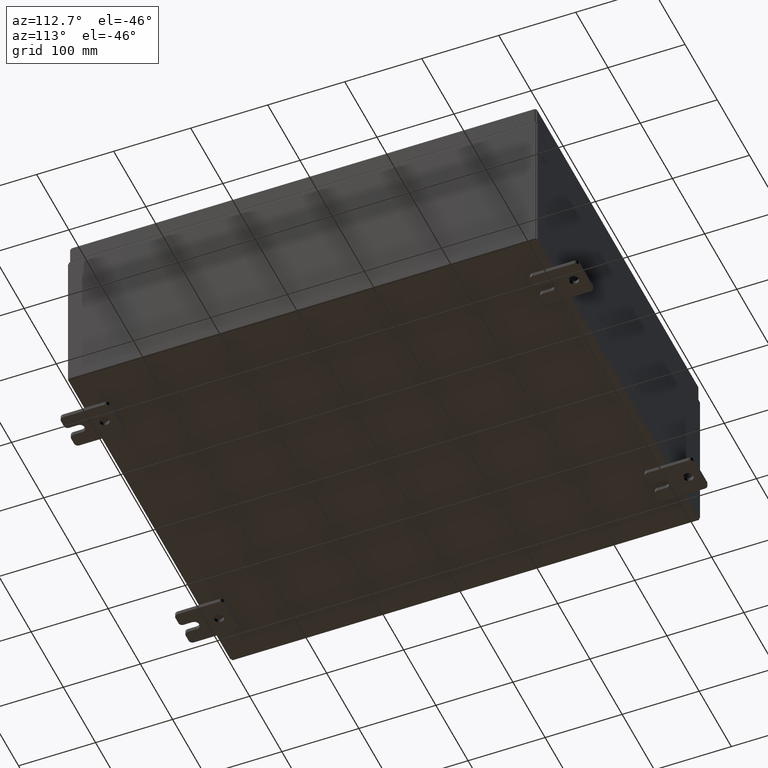
[diagram: clean part render]
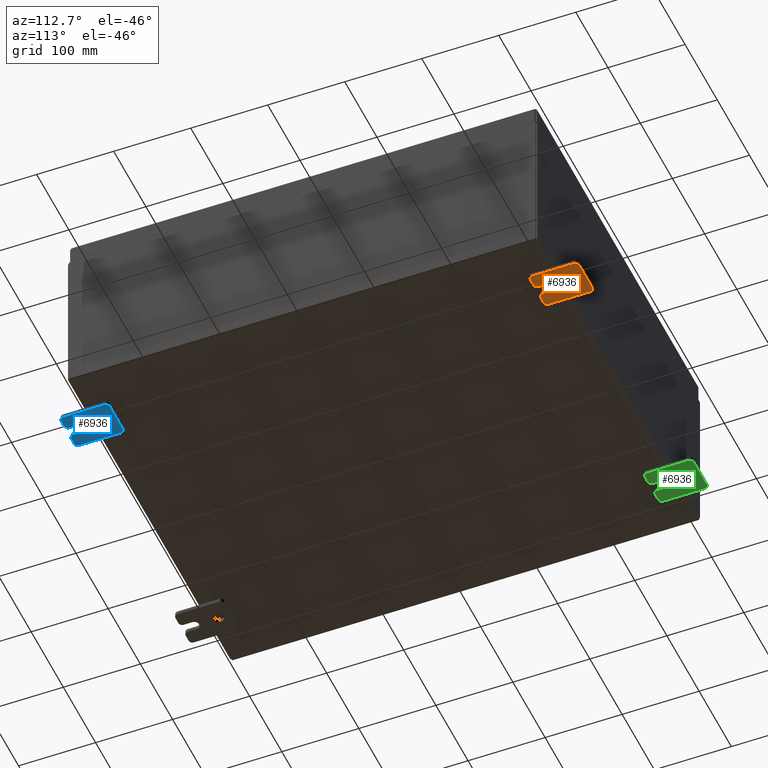
[diagram: same view with three faces highlighted in distinct colors, each labeled with its STEP entity id]
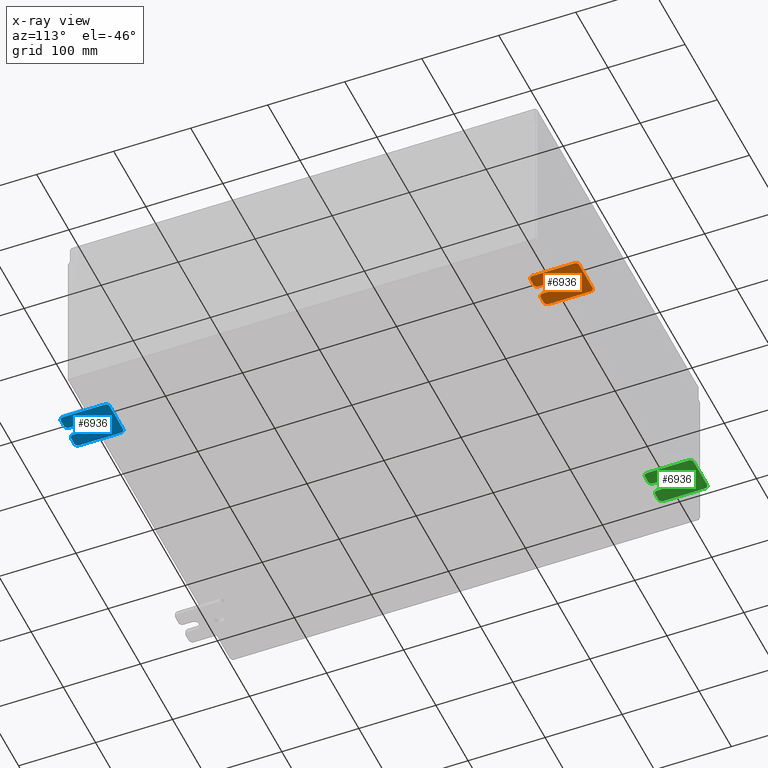
[diagram: x-ray of the same camera — body ghosted, the three highlighted faces saturated]
A machine part, auxiliary view with three faces highlighted in distinct colors.
The next image is the same camera in x-ray (body ghosted, the three faces saturated) — at least one of them is partly hidden behind the body in this view.
Their STEP definitions:

[orange] entity #6936 — the highlighted planar face has unit normal (0, 0, 1).
#694 = DIRECTION ( 'NONE',  ( -6.556435184794182400E-016, -1.000000000000000000, -1.639108796198545600E-016 ) ) ;
#1209 = VERTEX_POINT ( 'NONE', #24460 ) ;
#1649 = CARTESIAN_POINT ( 'NONE',  ( -0.1879999999999997800, -1.060000000000002100, 0.4400000000000016700 ) ) ;
#2498 = ORIENTED_EDGE ( 'NONE', *, *, #56751, .T. ) ;
#2922 = DIRECTION ( 'NONE',  ( -1.000000000000000000, -0.0000000000000000000, 0.0000000000000000000 ) ) ;
#3005 = DIRECTION ( 'NONE',  ( -1.000000000000000000, -0.0000000000000000000, 0.0000000000000000000 ) ) ;
#3062 = ORIENTED_EDGE ( 'NONE', *, *, #53513, .T. ) ;
#3301 = CARTESIAN_POINT ( 'NONE',  ( -0.1880000000000010000, 0.6249999999999992200, -7.703811342100550500E-020 ) ) ;
#3722 = AXIS2_PLACEMENT_3D ( 'NONE', #32342, #3005, #37277 ) ;
#4571 = CARTESIAN_POINT ( 'NONE',  ( -0.1879999999999997800, -1.250000000000002200, 0.9999999999999992200 ) ) ;
#4617 = ORIENTED_EDGE ( 'NONE', *, *, #44544, .F. ) ;
#4719 = CARTESIAN_POINT ( 'NONE',  ( -0.1880000000000004700, -1.060000000000002100, 0.2500000000000005000 ) ) ;
#4856 = EDGE_LOOP ( 'NONE', ( #15628, #2498 ) ) ;
#6189 = LINE ( 'NONE', #59436, #16153 ) ;
#6583 = DIRECTION ( 'NONE',  ( 0.0000000000000000000, 0.0000000000000000000, -1.000000000000000000 ) ) ;
#6643 = CARTESIAN_POINT ( 'NONE',  ( -0.1880000000000010000, 0.6249999999999992200, 0.2499999999999999200 ) ) ;
#6936 = ADVANCED_FACE ( 'NONE', ( #17700, #53801 ), #31899, .F. ) ;
#7525 = DIRECTION ( 'NONE',  ( -0.0000000000000000000, 0.0000000000000000000, -1.000000000000000000 ) ) ;
#7886 = EDGE_CURVE ( 'NONE', #45099, #39949, #6189, .T. ) ;
#8217 = DIRECTION ( 'NONE',  ( 0.0000000000000000000, 0.0000000000000000000, -1.000000000000000000 ) ) ;
#8533 = DIRECTION ( 'NONE',  ( -1.000000000000000000, -0.0000000000000000000, 0.0000000000000000000 ) ) ;
#10111 = AXIS2_PLACEMENT_3D ( 'NONE', #52267, #22822, #57200 ) ;
#10295 = LINE ( 'NONE', #27774, #49432 ) ;
#11179 = CARTESIAN_POINT ( 'NONE',  ( -0.1880000000000001900, -0.6249999999999992200, 0.2500000000000005000 ) ) ;
#11292 = DIRECTION ( 'NONE',  ( 1.000000000000000000, -0.0000000000000000000, -5.163192708025532000E-017 ) ) ;
#12228 = LINE ( 'NONE', #51895, #62834 ) ;
#12506 = EDGE_CURVE ( 'NONE', #63444, #13384, #56869, .T. ) ;
#13275 = LINE ( 'NONE', #21489, #40912 ) ;
#13384 = VERTEX_POINT ( 'NONE', #11179 ) ;
#13532 = ORIENTED_EDGE ( 'NONE', *, *, #36295, .T. ) ;
#13583 = ORIENTED_EDGE ( 'NONE', *, *, #39433, .T. ) ;
#15229 = AXIS2_PLACEMENT_3D ( 'NONE', #40650, #11292, #45618 ) ;
#15518 = CARTESIAN_POINT ( 'NONE',  ( -0.1880000000000001900, -0.6249999999999992200, -0.2499999999999993900 ) ) ;
#15628 = ORIENTED_EDGE ( 'NONE', *, *, #29330, .T. ) ;
#16153 = VECTOR ( 'NONE', #30050, 39.37007874015748100 ) ;
#17090 = AXIS2_PLACEMENT_3D ( 'NONE', #50219, #20778, #55138 ) ;
#17113 = ORIENTED_EDGE ( 'NONE', *, *, #30829, .T. ) ;
#17405 = VERTEX_POINT ( 'NONE', #24512 ) ;
#17700 = FACE_BOUND ( 'NONE', #4856, .T. ) ;
#18868 = AXIS2_PLACEMENT_3D ( 'NONE', #3301, #37577, #8217 ) ;
#19006 = CARTESIAN_POINT ( 'NONE',  ( -0.1879999999999997800, -1.060000000000004100, -0.8100000000000050500 ) ) ;
#19235 = VECTOR ( 'NONE', #52601, 39.37007874015748100 ) ;
#20037 = AXIS2_PLACEMENT_3D ( 'NONE', #32263, #2922, #37207 ) ;
#20778 = DIRECTION ( 'NONE',  ( -1.000000000000000000, -0.0000000000000000000, 0.0000000000000000000 ) ) ;
#21489 = CARTESIAN_POINT ( 'NONE',  ( -0.1879999999999997800, -1.250000000000005600, -1.000000000000006200 ) ) ;
#22336 = ORIENTED_EDGE ( 'NONE', *, *, #44743, .F. ) ;
#22822 = DIRECTION ( 'NONE',  ( -1.000000000000000000, 6.523827964459549700E-016, 5.163192708025532000E-017 ) ) ;
#23178 = CARTESIAN_POINT ( 'NONE',  ( -0.1880000000000005800, -1.250000000000003800, 0.2500000000000005000 ) ) ;
#23933 = DIRECTION ( 'NONE',  ( 0.0000000000000000000, 0.0000000000000000000, -1.000000000000000000 ) ) ;
#24460 = CARTESIAN_POINT ( 'NONE',  ( -0.1879999999999997800, 1.059999999999996500, 0.9999999999999953400 ) ) ;
#24512 = CARTESIAN_POINT ( 'NONE',  ( -0.1879999999999997800, -1.060000000000004500, -1.000000000000006400 ) ) ;
#25323 = EDGE_CURVE ( 'NONE', #1209, #46798, #10295, .T. ) ;
#25399 = VERTEX_POINT ( 'NONE', #42787 ) ;
#25705 = CARTESIAN_POINT ( 'NONE',  ( -0.1879999999999997800, -1.250000000000002400, 0.8099999999999980500 ) ) ;
#26244 = EDGE_CURVE ( 'NONE', #17405, #44542, #13275, .T. ) ;
#26509 = CIRCLE ( 'NONE', #10111, 0.2499999999999999200 ) ;
#27774 = CARTESIAN_POINT ( 'NONE',  ( -0.1879999999999997800, 1.249999999999997600, 0.9999999999999951200 ) ) ;
#27835 = VERTEX_POINT ( 'NONE', #60165 ) ;
#27867 = EDGE_CURVE ( 'NONE', #63444, #40456, #46954, .T. ) ;
#29130 = LINE ( 'NONE', #15518, #40661 ) ;
#29151 = EDGE_LOOP ( 'NONE', ( #4617, #3062, #41407, #13583, #55142, #13532, #63535, #61907, #36815, #17113, #22336, #40224, #54954, #33377 ) ) ;
#29177 = CARTESIAN_POINT ( 'NONE',  ( -0.1879999999999997800, -1.060000000000001200, 0.9999999999999988900 ) ) ;
#29330 = EDGE_CURVE ( 'NONE', #27835, #45010, #56084, .T. ) ;
#30050 = DIRECTION ( 'NONE',  ( 0.0000000000000000000, -1.639108796198553600E-015, -1.000000000000000000 ) ) ;
#30466 = CARTESIAN_POINT ( 'NONE',  ( -0.1879999999999997800, -1.250000000000005300, -0.8100000000000047200 ) ) ;
#30829 = EDGE_CURVE ( 'NONE', #45099, #38123, #59814, .T. ) ;
#31230 = CIRCLE ( 'NONE', #54282, 0.1900000000000011100 ) ;
#31899 = PLANE ( 'NONE',  #46751 ) ;
#32217 = VECTOR ( 'NONE', #58599, 39.37007874015748100 ) ;
#32263 = CARTESIAN_POINT ( 'NONE',  ( -0.1879999999999997800, -1.060000000000001600, 0.8099999999999978300 ) ) ;
#32342 = CARTESIAN_POINT ( 'NONE',  ( -0.1879999999999997800, -1.060000000000003400, -0.4400000000000005000 ) ) ;
#32700 = DIRECTION ( 'NONE',  ( 0.0000000000000000000, -1.000000000000000000, 1.639108796198558100E-015 ) ) ;
#33377 = ORIENTED_EDGE ( 'NONE', *, *, #27867, .T. ) ;
#33617 = CARTESIAN_POINT ( 'NONE',  ( -0.1879999999999997800, -1.250000000000003100, 0.4400000000000020000 ) ) ;
#35279 = AXIS2_PLACEMENT_3D ( 'NONE', #1649, #35913, #6583 ) ;
#35295 = CIRCLE ( 'NONE', #35813, 0.1900000000000011100 ) ;
#35813 = AXIS2_PLACEMENT_3D ( 'NONE', #37877, #8533, #42782 ) ;
#35913 = DIRECTION ( 'NONE',  ( -1.000000000000000000, -0.0000000000000000000, 0.0000000000000000000 ) ) ;
#36295 = EDGE_CURVE ( 'NONE', #43288, #44542, #36629, .T. ) ;
#36629 = CIRCLE ( 'NONE', #17090, 0.1900000000000011100 ) ;
#36656 = CARTESIAN_POINT ( 'NONE',  ( -0.1879999999999997800, 0.0000000000000000000, 0.0000000000000000000 ) ) ;
#36815 = ORIENTED_EDGE ( 'NONE', *, *, #7886, .F. ) ;
#36870 = DIRECTION ( 'NONE',  ( 1.000000000000000000, 0.0000000000000000000, -0.0000000000000000000 ) ) ;
#37207 = DIRECTION ( 'NONE',  ( 0.0000000000000000000, 7.189073667537492800E-016, -1.000000000000000000 ) ) ;
#37277 = DIRECTION ( 'NONE',  ( 0.0000000000000000000, 0.0000000000000000000, -1.000000000000000000 ) ) ;
#37302 = DIRECTION ( 'NONE',  ( 0.0000000000000000000, 1.639108796198553600E-015, 1.000000000000000000 ) ) ;
#37577 = DIRECTION ( 'NONE',  ( 1.000000000000000000, -0.0000000000000000000, -5.163192708025532000E-017 ) ) ;
#37877 = CARTESIAN_POINT ( 'NONE',  ( -0.1879999999999997800, 1.059999999999996300, 0.8099999999999938400 ) ) ;
#38123 = VERTEX_POINT ( 'NONE', #38817 ) ;
#38817 = CARTESIAN_POINT ( 'NONE',  ( -0.1880000000000004700, -1.060000000000003400, -0.2499999999999994400 ) ) ;
#39433 = EDGE_CURVE ( 'NONE', #1209, #25399, #35295, .T. ) ;
#39949 = VERTEX_POINT ( 'NONE', #30466 ) ;
#40224 = ORIENTED_EDGE ( 'NONE', *, *, #43877, .F. ) ;
#40244 = EDGE_CURVE ( 'NONE', #43288, #25399, #12228, .T. ) ;
#40456 = VERTEX_POINT ( 'NONE', #33617 ) ;
#40650 = CARTESIAN_POINT ( 'NONE',  ( -0.1880000000000010000, 0.6249999999999992200, -7.703811342100550500E-020 ) ) ;
#40661 = VECTOR ( 'NONE', #694, 39.37007874015748100 ) ;
#40912 = VECTOR ( 'NONE', #55867, 39.37007874015748100 ) ;
#41407 = ORIENTED_EDGE ( 'NONE', *, *, #25323, .F. ) ;
#42782 = DIRECTION ( 'NONE',  ( 0.0000000000000000000, 0.0000000000000000000, -1.000000000000000000 ) ) ;
#42787 = CARTESIAN_POINT ( 'NONE',  ( -0.1879999999999997800, 1.249999999999997300, 0.8099999999999935000 ) ) ;
#43288 = VERTEX_POINT ( 'NONE', #58848 ) ;
#43877 = EDGE_CURVE ( 'NONE', #13384, #50943, #26509, .T. ) ;
#44542 = VERTEX_POINT ( 'NONE', #53671 ) ;
#44544 = EDGE_CURVE ( 'NONE', #44870, #40456, #45318, .T. ) ;
#44743 = EDGE_CURVE ( 'NONE', #50943, #38123, #29130, .T. ) ;
#44870 = VERTEX_POINT ( 'NONE', #25705 ) ;
#45010 = VERTEX_POINT ( 'NONE', #6643 ) ;
#45099 = VERTEX_POINT ( 'NONE', #46081 ) ;
#45318 = LINE ( 'NONE', #4571, #32217 ) ;
#45618 = DIRECTION ( 'NONE',  ( 0.0000000000000000000, 0.0000000000000000000, -1.000000000000000000 ) ) ;
#46081 = CARTESIAN_POINT ( 'NONE',  ( -0.1879999999999997800, -1.250000000000004700, -0.4400000000000002200 ) ) ;
#46751 = AXIS2_PLACEMENT_3D ( 'NONE', #36656, #36870, #7525 ) ;
#46798 = VERTEX_POINT ( 'NONE', #29177 ) ;
#46863 = CARTESIAN_POINT ( 'NONE',  ( -0.1880000000000001900, -0.6249999999999992200, -0.2499999999999998600 ) ) ;
#46954 = CIRCLE ( 'NONE', #35279, 0.1900000000000011400 ) ;
#49432 = VECTOR ( 'NONE', #32700, 39.37007874015748100 ) ;
#50219 = CARTESIAN_POINT ( 'NONE',  ( -0.1879999999999997800, 1.059999999999993600, -0.8100000000000089400 ) ) ;
#50943 = VERTEX_POINT ( 'NONE', #46863 ) ;
#51895 = CARTESIAN_POINT ( 'NONE',  ( -0.1879999999999997800, 1.249999999999994200, -1.000000000000010400 ) ) ;
#52267 = CARTESIAN_POINT ( 'NONE',  ( -0.1880000000000001900, -0.6249999999999992200, 6.829619984160658000E-017 ) ) ;
#52601 = DIRECTION ( 'NONE',  ( 6.556435184794182400E-016, 1.000000000000000000, 0.0000000000000000000 ) ) ;
#53362 = DIRECTION ( 'NONE',  ( -1.000000000000000000, -0.0000000000000000000, 0.0000000000000000000 ) ) ;
#53513 = EDGE_CURVE ( 'NONE', #44870, #46798, #56309, .T. ) ;
#53671 = CARTESIAN_POINT ( 'NONE',  ( -0.1879999999999997800, 1.059999999999993400, -1.000000000000010000 ) ) ;
#53801 = FACE_OUTER_BOUND ( 'NONE', #29151, .T. ) ;
#54282 = AXIS2_PLACEMENT_3D ( 'NONE', #19006, #53362, #23933 ) ;
#54954 = ORIENTED_EDGE ( 'NONE', *, *, #12506, .F. ) ;
#55138 = DIRECTION ( 'NONE',  ( 0.0000000000000000000, 0.0000000000000000000, -1.000000000000000000 ) ) ;
#55142 = ORIENTED_EDGE ( 'NONE', *, *, #40244, .F. ) ;
#55867 = DIRECTION ( 'NONE',  ( 0.0000000000000000000, 1.000000000000000000, -1.639108796198558100E-015 ) ) ;
#56084 = CIRCLE ( 'NONE', #15229, 0.2499999999999999200 ) ;
#56309 = CIRCLE ( 'NONE', #20037, 0.1900000000000011100 ) ;
#56751 = EDGE_CURVE ( 'NONE', #45010, #27835, #61460, .T. ) ;
#56869 = LINE ( 'NONE', #23178, #19235 ) ;
#57200 = DIRECTION ( 'NONE',  ( -6.829619984160660000E-016, -1.000000000000000000, 0.0000000000000000000 ) ) ;
#58599 = DIRECTION ( 'NONE',  ( 0.0000000000000000000, -1.639108796198553600E-015, -1.000000000000000000 ) ) ;
#58848 = CARTESIAN_POINT ( 'NONE',  ( -0.1879999999999997800, 1.249999999999994700, -0.8100000000000092700 ) ) ;
#59436 = CARTESIAN_POINT ( 'NONE',  ( -0.1879999999999997800, -1.250000000000002200, 0.9999999999999992200 ) ) ;
#59814 = CIRCLE ( 'NONE', #3722, 0.1900000000000011100 ) ;
#60165 = CARTESIAN_POINT ( 'NONE',  ( -0.1880000000000010000, 0.6249999999999992200, -0.2499999999999999200 ) ) ;
#61460 = CIRCLE ( 'NONE', #18868, 0.2499999999999999200 ) ;
#61483 = EDGE_CURVE ( 'NONE', #17405, #39949, #31230, .T. ) ;
#61907 = ORIENTED_EDGE ( 'NONE', *, *, #61483, .T. ) ;
#62834 = VECTOR ( 'NONE', #37302, 39.37007874015748100 ) ;
#63444 = VERTEX_POINT ( 'NONE', #4719 ) ;
#63535 = ORIENTED_EDGE ( 'NONE', *, *, #26244, .F. ) ;

[blue] entity #6936 — the highlighted planar face has unit normal (0, 0, 1).
#694 = DIRECTION ( 'NONE',  ( -6.556435184794182400E-016, -1.000000000000000000, -1.639108796198545600E-016 ) ) ;
#1209 = VERTEX_POINT ( 'NONE', #24460 ) ;
#1649 = CARTESIAN_POINT ( 'NONE',  ( -0.1879999999999997800, -1.060000000000002100, 0.4400000000000016700 ) ) ;
#2498 = ORIENTED_EDGE ( 'NONE', *, *, #56751, .T. ) ;
#2922 = DIRECTION ( 'NONE',  ( -1.000000000000000000, -0.0000000000000000000, 0.0000000000000000000 ) ) ;
#3005 = DIRECTION ( 'NONE',  ( -1.000000000000000000, -0.0000000000000000000, 0.0000000000000000000 ) ) ;
#3062 = ORIENTED_EDGE ( 'NONE', *, *, #53513, .T. ) ;
#3301 = CARTESIAN_POINT ( 'NONE',  ( -0.1880000000000010000, 0.6249999999999992200, -7.703811342100550500E-020 ) ) ;
#3722 = AXIS2_PLACEMENT_3D ( 'NONE', #32342, #3005, #37277 ) ;
#4571 = CARTESIAN_POINT ( 'NONE',  ( -0.1879999999999997800, -1.250000000000002200, 0.9999999999999992200 ) ) ;
#4617 = ORIENTED_EDGE ( 'NONE', *, *, #44544, .F. ) ;
#4719 = CARTESIAN_POINT ( 'NONE',  ( -0.1880000000000004700, -1.060000000000002100, 0.2500000000000005000 ) ) ;
#4856 = EDGE_LOOP ( 'NONE', ( #15628, #2498 ) ) ;
#6189 = LINE ( 'NONE', #59436, #16153 ) ;
#6583 = DIRECTION ( 'NONE',  ( 0.0000000000000000000, 0.0000000000000000000, -1.000000000000000000 ) ) ;
#6643 = CARTESIAN_POINT ( 'NONE',  ( -0.1880000000000010000, 0.6249999999999992200, 0.2499999999999999200 ) ) ;
#6936 = ADVANCED_FACE ( 'NONE', ( #17700, #53801 ), #31899, .F. ) ;
#7525 = DIRECTION ( 'NONE',  ( -0.0000000000000000000, 0.0000000000000000000, -1.000000000000000000 ) ) ;
#7886 = EDGE_CURVE ( 'NONE', #45099, #39949, #6189, .T. ) ;
#8217 = DIRECTION ( 'NONE',  ( 0.0000000000000000000, 0.0000000000000000000, -1.000000000000000000 ) ) ;
#8533 = DIRECTION ( 'NONE',  ( -1.000000000000000000, -0.0000000000000000000, 0.0000000000000000000 ) ) ;
#10111 = AXIS2_PLACEMENT_3D ( 'NONE', #52267, #22822, #57200 ) ;
#10295 = LINE ( 'NONE', #27774, #49432 ) ;
#11179 = CARTESIAN_POINT ( 'NONE',  ( -0.1880000000000001900, -0.6249999999999992200, 0.2500000000000005000 ) ) ;
#11292 = DIRECTION ( 'NONE',  ( 1.000000000000000000, -0.0000000000000000000, -5.163192708025532000E-017 ) ) ;
#12228 = LINE ( 'NONE', #51895, #62834 ) ;
#12506 = EDGE_CURVE ( 'NONE', #63444, #13384, #56869, .T. ) ;
#13275 = LINE ( 'NONE', #21489, #40912 ) ;
#13384 = VERTEX_POINT ( 'NONE', #11179 ) ;
#13532 = ORIENTED_EDGE ( 'NONE', *, *, #36295, .T. ) ;
#13583 = ORIENTED_EDGE ( 'NONE', *, *, #39433, .T. ) ;
#15229 = AXIS2_PLACEMENT_3D ( 'NONE', #40650, #11292, #45618 ) ;
#15518 = CARTESIAN_POINT ( 'NONE',  ( -0.1880000000000001900, -0.6249999999999992200, -0.2499999999999993900 ) ) ;
#15628 = ORIENTED_EDGE ( 'NONE', *, *, #29330, .T. ) ;
#16153 = VECTOR ( 'NONE', #30050, 39.37007874015748100 ) ;
#17090 = AXIS2_PLACEMENT_3D ( 'NONE', #50219, #20778, #55138 ) ;
#17113 = ORIENTED_EDGE ( 'NONE', *, *, #30829, .T. ) ;
#17405 = VERTEX_POINT ( 'NONE', #24512 ) ;
#17700 = FACE_BOUND ( 'NONE', #4856, .T. ) ;
#18868 = AXIS2_PLACEMENT_3D ( 'NONE', #3301, #37577, #8217 ) ;
#19006 = CARTESIAN_POINT ( 'NONE',  ( -0.1879999999999997800, -1.060000000000004100, -0.8100000000000050500 ) ) ;
#19235 = VECTOR ( 'NONE', #52601, 39.37007874015748100 ) ;
#20037 = AXIS2_PLACEMENT_3D ( 'NONE', #32263, #2922, #37207 ) ;
#20778 = DIRECTION ( 'NONE',  ( -1.000000000000000000, -0.0000000000000000000, 0.0000000000000000000 ) ) ;
#21489 = CARTESIAN_POINT ( 'NONE',  ( -0.1879999999999997800, -1.250000000000005600, -1.000000000000006200 ) ) ;
#22336 = ORIENTED_EDGE ( 'NONE', *, *, #44743, .F. ) ;
#22822 = DIRECTION ( 'NONE',  ( -1.000000000000000000, 6.523827964459549700E-016, 5.163192708025532000E-017 ) ) ;
#23178 = CARTESIAN_POINT ( 'NONE',  ( -0.1880000000000005800, -1.250000000000003800, 0.2500000000000005000 ) ) ;
#23933 = DIRECTION ( 'NONE',  ( 0.0000000000000000000, 0.0000000000000000000, -1.000000000000000000 ) ) ;
#24460 = CARTESIAN_POINT ( 'NONE',  ( -0.1879999999999997800, 1.059999999999996500, 0.9999999999999953400 ) ) ;
#24512 = CARTESIAN_POINT ( 'NONE',  ( -0.1879999999999997800, -1.060000000000004500, -1.000000000000006400 ) ) ;
#25323 = EDGE_CURVE ( 'NONE', #1209, #46798, #10295, .T. ) ;
#25399 = VERTEX_POINT ( 'NONE', #42787 ) ;
#25705 = CARTESIAN_POINT ( 'NONE',  ( -0.1879999999999997800, -1.250000000000002400, 0.8099999999999980500 ) ) ;
#26244 = EDGE_CURVE ( 'NONE', #17405, #44542, #13275, .T. ) ;
#26509 = CIRCLE ( 'NONE', #10111, 0.2499999999999999200 ) ;
#27774 = CARTESIAN_POINT ( 'NONE',  ( -0.1879999999999997800, 1.249999999999997600, 0.9999999999999951200 ) ) ;
#27835 = VERTEX_POINT ( 'NONE', #60165 ) ;
#27867 = EDGE_CURVE ( 'NONE', #63444, #40456, #46954, .T. ) ;
#29130 = LINE ( 'NONE', #15518, #40661 ) ;
#29151 = EDGE_LOOP ( 'NONE', ( #4617, #3062, #41407, #13583, #55142, #13532, #63535, #61907, #36815, #17113, #22336, #40224, #54954, #33377 ) ) ;
#29177 = CARTESIAN_POINT ( 'NONE',  ( -0.1879999999999997800, -1.060000000000001200, 0.9999999999999988900 ) ) ;
#29330 = EDGE_CURVE ( 'NONE', #27835, #45010, #56084, .T. ) ;
#30050 = DIRECTION ( 'NONE',  ( 0.0000000000000000000, -1.639108796198553600E-015, -1.000000000000000000 ) ) ;
#30466 = CARTESIAN_POINT ( 'NONE',  ( -0.1879999999999997800, -1.250000000000005300, -0.8100000000000047200 ) ) ;
#30829 = EDGE_CURVE ( 'NONE', #45099, #38123, #59814, .T. ) ;
#31230 = CIRCLE ( 'NONE', #54282, 0.1900000000000011100 ) ;
#31899 = PLANE ( 'NONE',  #46751 ) ;
#32217 = VECTOR ( 'NONE', #58599, 39.37007874015748100 ) ;
#32263 = CARTESIAN_POINT ( 'NONE',  ( -0.1879999999999997800, -1.060000000000001600, 0.8099999999999978300 ) ) ;
#32342 = CARTESIAN_POINT ( 'NONE',  ( -0.1879999999999997800, -1.060000000000003400, -0.4400000000000005000 ) ) ;
#32700 = DIRECTION ( 'NONE',  ( 0.0000000000000000000, -1.000000000000000000, 1.639108796198558100E-015 ) ) ;
#33377 = ORIENTED_EDGE ( 'NONE', *, *, #27867, .T. ) ;
#33617 = CARTESIAN_POINT ( 'NONE',  ( -0.1879999999999997800, -1.250000000000003100, 0.4400000000000020000 ) ) ;
#35279 = AXIS2_PLACEMENT_3D ( 'NONE', #1649, #35913, #6583 ) ;
#35295 = CIRCLE ( 'NONE', #35813, 0.1900000000000011100 ) ;
#35813 = AXIS2_PLACEMENT_3D ( 'NONE', #37877, #8533, #42782 ) ;
#35913 = DIRECTION ( 'NONE',  ( -1.000000000000000000, -0.0000000000000000000, 0.0000000000000000000 ) ) ;
#36295 = EDGE_CURVE ( 'NONE', #43288, #44542, #36629, .T. ) ;
#36629 = CIRCLE ( 'NONE', #17090, 0.1900000000000011100 ) ;
#36656 = CARTESIAN_POINT ( 'NONE',  ( -0.1879999999999997800, 0.0000000000000000000, 0.0000000000000000000 ) ) ;
#36815 = ORIENTED_EDGE ( 'NONE', *, *, #7886, .F. ) ;
#36870 = DIRECTION ( 'NONE',  ( 1.000000000000000000, 0.0000000000000000000, -0.0000000000000000000 ) ) ;
#37207 = DIRECTION ( 'NONE',  ( 0.0000000000000000000, 7.189073667537492800E-016, -1.000000000000000000 ) ) ;
#37277 = DIRECTION ( 'NONE',  ( 0.0000000000000000000, 0.0000000000000000000, -1.000000000000000000 ) ) ;
#37302 = DIRECTION ( 'NONE',  ( 0.0000000000000000000, 1.639108796198553600E-015, 1.000000000000000000 ) ) ;
#37577 = DIRECTION ( 'NONE',  ( 1.000000000000000000, -0.0000000000000000000, -5.163192708025532000E-017 ) ) ;
#37877 = CARTESIAN_POINT ( 'NONE',  ( -0.1879999999999997800, 1.059999999999996300, 0.8099999999999938400 ) ) ;
#38123 = VERTEX_POINT ( 'NONE', #38817 ) ;
#38817 = CARTESIAN_POINT ( 'NONE',  ( -0.1880000000000004700, -1.060000000000003400, -0.2499999999999994400 ) ) ;
#39433 = EDGE_CURVE ( 'NONE', #1209, #25399, #35295, .T. ) ;
#39949 = VERTEX_POINT ( 'NONE', #30466 ) ;
#40224 = ORIENTED_EDGE ( 'NONE', *, *, #43877, .F. ) ;
#40244 = EDGE_CURVE ( 'NONE', #43288, #25399, #12228, .T. ) ;
#40456 = VERTEX_POINT ( 'NONE', #33617 ) ;
#40650 = CARTESIAN_POINT ( 'NONE',  ( -0.1880000000000010000, 0.6249999999999992200, -7.703811342100550500E-020 ) ) ;
#40661 = VECTOR ( 'NONE', #694, 39.37007874015748100 ) ;
#40912 = VECTOR ( 'NONE', #55867, 39.37007874015748100 ) ;
#41407 = ORIENTED_EDGE ( 'NONE', *, *, #25323, .F. ) ;
#42782 = DIRECTION ( 'NONE',  ( 0.0000000000000000000, 0.0000000000000000000, -1.000000000000000000 ) ) ;
#42787 = CARTESIAN_POINT ( 'NONE',  ( -0.1879999999999997800, 1.249999999999997300, 0.8099999999999935000 ) ) ;
#43288 = VERTEX_POINT ( 'NONE', #58848 ) ;
#43877 = EDGE_CURVE ( 'NONE', #13384, #50943, #26509, .T. ) ;
#44542 = VERTEX_POINT ( 'NONE', #53671 ) ;
#44544 = EDGE_CURVE ( 'NONE', #44870, #40456, #45318, .T. ) ;
#44743 = EDGE_CURVE ( 'NONE', #50943, #38123, #29130, .T. ) ;
#44870 = VERTEX_POINT ( 'NONE', #25705 ) ;
#45010 = VERTEX_POINT ( 'NONE', #6643 ) ;
#45099 = VERTEX_POINT ( 'NONE', #46081 ) ;
#45318 = LINE ( 'NONE', #4571, #32217 ) ;
#45618 = DIRECTION ( 'NONE',  ( 0.0000000000000000000, 0.0000000000000000000, -1.000000000000000000 ) ) ;
#46081 = CARTESIAN_POINT ( 'NONE',  ( -0.1879999999999997800, -1.250000000000004700, -0.4400000000000002200 ) ) ;
#46751 = AXIS2_PLACEMENT_3D ( 'NONE', #36656, #36870, #7525 ) ;
#46798 = VERTEX_POINT ( 'NONE', #29177 ) ;
#46863 = CARTESIAN_POINT ( 'NONE',  ( -0.1880000000000001900, -0.6249999999999992200, -0.2499999999999998600 ) ) ;
#46954 = CIRCLE ( 'NONE', #35279, 0.1900000000000011400 ) ;
#49432 = VECTOR ( 'NONE', #32700, 39.37007874015748100 ) ;
#50219 = CARTESIAN_POINT ( 'NONE',  ( -0.1879999999999997800, 1.059999999999993600, -0.8100000000000089400 ) ) ;
#50943 = VERTEX_POINT ( 'NONE', #46863 ) ;
#51895 = CARTESIAN_POINT ( 'NONE',  ( -0.1879999999999997800, 1.249999999999994200, -1.000000000000010400 ) ) ;
#52267 = CARTESIAN_POINT ( 'NONE',  ( -0.1880000000000001900, -0.6249999999999992200, 6.829619984160658000E-017 ) ) ;
#52601 = DIRECTION ( 'NONE',  ( 6.556435184794182400E-016, 1.000000000000000000, 0.0000000000000000000 ) ) ;
#53362 = DIRECTION ( 'NONE',  ( -1.000000000000000000, -0.0000000000000000000, 0.0000000000000000000 ) ) ;
#53513 = EDGE_CURVE ( 'NONE', #44870, #46798, #56309, .T. ) ;
#53671 = CARTESIAN_POINT ( 'NONE',  ( -0.1879999999999997800, 1.059999999999993400, -1.000000000000010000 ) ) ;
#53801 = FACE_OUTER_BOUND ( 'NONE', #29151, .T. ) ;
#54282 = AXIS2_PLACEMENT_3D ( 'NONE', #19006, #53362, #23933 ) ;
#54954 = ORIENTED_EDGE ( 'NONE', *, *, #12506, .F. ) ;
#55138 = DIRECTION ( 'NONE',  ( 0.0000000000000000000, 0.0000000000000000000, -1.000000000000000000 ) ) ;
#55142 = ORIENTED_EDGE ( 'NONE', *, *, #40244, .F. ) ;
#55867 = DIRECTION ( 'NONE',  ( 0.0000000000000000000, 1.000000000000000000, -1.639108796198558100E-015 ) ) ;
#56084 = CIRCLE ( 'NONE', #15229, 0.2499999999999999200 ) ;
#56309 = CIRCLE ( 'NONE', #20037, 0.1900000000000011100 ) ;
#56751 = EDGE_CURVE ( 'NONE', #45010, #27835, #61460, .T. ) ;
#56869 = LINE ( 'NONE', #23178, #19235 ) ;
#57200 = DIRECTION ( 'NONE',  ( -6.829619984160660000E-016, -1.000000000000000000, 0.0000000000000000000 ) ) ;
#58599 = DIRECTION ( 'NONE',  ( 0.0000000000000000000, -1.639108796198553600E-015, -1.000000000000000000 ) ) ;
#58848 = CARTESIAN_POINT ( 'NONE',  ( -0.1879999999999997800, 1.249999999999994700, -0.8100000000000092700 ) ) ;
#59436 = CARTESIAN_POINT ( 'NONE',  ( -0.1879999999999997800, -1.250000000000002200, 0.9999999999999992200 ) ) ;
#59814 = CIRCLE ( 'NONE', #3722, 0.1900000000000011100 ) ;
#60165 = CARTESIAN_POINT ( 'NONE',  ( -0.1880000000000010000, 0.6249999999999992200, -0.2499999999999999200 ) ) ;
#61460 = CIRCLE ( 'NONE', #18868, 0.2499999999999999200 ) ;
#61483 = EDGE_CURVE ( 'NONE', #17405, #39949, #31230, .T. ) ;
#61907 = ORIENTED_EDGE ( 'NONE', *, *, #61483, .T. ) ;
#62834 = VECTOR ( 'NONE', #37302, 39.37007874015748100 ) ;
#63444 = VERTEX_POINT ( 'NONE', #4719 ) ;
#63535 = ORIENTED_EDGE ( 'NONE', *, *, #26244, .F. ) ;

[green] entity #6936 — the highlighted planar face has unit normal (0, 0, 1).
#694 = DIRECTION ( 'NONE',  ( -6.556435184794182400E-016, -1.000000000000000000, -1.639108796198545600E-016 ) ) ;
#1209 = VERTEX_POINT ( 'NONE', #24460 ) ;
#1649 = CARTESIAN_POINT ( 'NONE',  ( -0.1879999999999997800, -1.060000000000002100, 0.4400000000000016700 ) ) ;
#2498 = ORIENTED_EDGE ( 'NONE', *, *, #56751, .T. ) ;
#2922 = DIRECTION ( 'NONE',  ( -1.000000000000000000, -0.0000000000000000000, 0.0000000000000000000 ) ) ;
#3005 = DIRECTION ( 'NONE',  ( -1.000000000000000000, -0.0000000000000000000, 0.0000000000000000000 ) ) ;
#3062 = ORIENTED_EDGE ( 'NONE', *, *, #53513, .T. ) ;
#3301 = CARTESIAN_POINT ( 'NONE',  ( -0.1880000000000010000, 0.6249999999999992200, -7.703811342100550500E-020 ) ) ;
#3722 = AXIS2_PLACEMENT_3D ( 'NONE', #32342, #3005, #37277 ) ;
#4571 = CARTESIAN_POINT ( 'NONE',  ( -0.1879999999999997800, -1.250000000000002200, 0.9999999999999992200 ) ) ;
#4617 = ORIENTED_EDGE ( 'NONE', *, *, #44544, .F. ) ;
#4719 = CARTESIAN_POINT ( 'NONE',  ( -0.1880000000000004700, -1.060000000000002100, 0.2500000000000005000 ) ) ;
#4856 = EDGE_LOOP ( 'NONE', ( #15628, #2498 ) ) ;
#6189 = LINE ( 'NONE', #59436, #16153 ) ;
#6583 = DIRECTION ( 'NONE',  ( 0.0000000000000000000, 0.0000000000000000000, -1.000000000000000000 ) ) ;
#6643 = CARTESIAN_POINT ( 'NONE',  ( -0.1880000000000010000, 0.6249999999999992200, 0.2499999999999999200 ) ) ;
#6936 = ADVANCED_FACE ( 'NONE', ( #17700, #53801 ), #31899, .F. ) ;
#7525 = DIRECTION ( 'NONE',  ( -0.0000000000000000000, 0.0000000000000000000, -1.000000000000000000 ) ) ;
#7886 = EDGE_CURVE ( 'NONE', #45099, #39949, #6189, .T. ) ;
#8217 = DIRECTION ( 'NONE',  ( 0.0000000000000000000, 0.0000000000000000000, -1.000000000000000000 ) ) ;
#8533 = DIRECTION ( 'NONE',  ( -1.000000000000000000, -0.0000000000000000000, 0.0000000000000000000 ) ) ;
#10111 = AXIS2_PLACEMENT_3D ( 'NONE', #52267, #22822, #57200 ) ;
#10295 = LINE ( 'NONE', #27774, #49432 ) ;
#11179 = CARTESIAN_POINT ( 'NONE',  ( -0.1880000000000001900, -0.6249999999999992200, 0.2500000000000005000 ) ) ;
#11292 = DIRECTION ( 'NONE',  ( 1.000000000000000000, -0.0000000000000000000, -5.163192708025532000E-017 ) ) ;
#12228 = LINE ( 'NONE', #51895, #62834 ) ;
#12506 = EDGE_CURVE ( 'NONE', #63444, #13384, #56869, .T. ) ;
#13275 = LINE ( 'NONE', #21489, #40912 ) ;
#13384 = VERTEX_POINT ( 'NONE', #11179 ) ;
#13532 = ORIENTED_EDGE ( 'NONE', *, *, #36295, .T. ) ;
#13583 = ORIENTED_EDGE ( 'NONE', *, *, #39433, .T. ) ;
#15229 = AXIS2_PLACEMENT_3D ( 'NONE', #40650, #11292, #45618 ) ;
#15518 = CARTESIAN_POINT ( 'NONE',  ( -0.1880000000000001900, -0.6249999999999992200, -0.2499999999999993900 ) ) ;
#15628 = ORIENTED_EDGE ( 'NONE', *, *, #29330, .T. ) ;
#16153 = VECTOR ( 'NONE', #30050, 39.37007874015748100 ) ;
#17090 = AXIS2_PLACEMENT_3D ( 'NONE', #50219, #20778, #55138 ) ;
#17113 = ORIENTED_EDGE ( 'NONE', *, *, #30829, .T. ) ;
#17405 = VERTEX_POINT ( 'NONE', #24512 ) ;
#17700 = FACE_BOUND ( 'NONE', #4856, .T. ) ;
#18868 = AXIS2_PLACEMENT_3D ( 'NONE', #3301, #37577, #8217 ) ;
#19006 = CARTESIAN_POINT ( 'NONE',  ( -0.1879999999999997800, -1.060000000000004100, -0.8100000000000050500 ) ) ;
#19235 = VECTOR ( 'NONE', #52601, 39.37007874015748100 ) ;
#20037 = AXIS2_PLACEMENT_3D ( 'NONE', #32263, #2922, #37207 ) ;
#20778 = DIRECTION ( 'NONE',  ( -1.000000000000000000, -0.0000000000000000000, 0.0000000000000000000 ) ) ;
#21489 = CARTESIAN_POINT ( 'NONE',  ( -0.1879999999999997800, -1.250000000000005600, -1.000000000000006200 ) ) ;
#22336 = ORIENTED_EDGE ( 'NONE', *, *, #44743, .F. ) ;
#22822 = DIRECTION ( 'NONE',  ( -1.000000000000000000, 6.523827964459549700E-016, 5.163192708025532000E-017 ) ) ;
#23178 = CARTESIAN_POINT ( 'NONE',  ( -0.1880000000000005800, -1.250000000000003800, 0.2500000000000005000 ) ) ;
#23933 = DIRECTION ( 'NONE',  ( 0.0000000000000000000, 0.0000000000000000000, -1.000000000000000000 ) ) ;
#24460 = CARTESIAN_POINT ( 'NONE',  ( -0.1879999999999997800, 1.059999999999996500, 0.9999999999999953400 ) ) ;
#24512 = CARTESIAN_POINT ( 'NONE',  ( -0.1879999999999997800, -1.060000000000004500, -1.000000000000006400 ) ) ;
#25323 = EDGE_CURVE ( 'NONE', #1209, #46798, #10295, .T. ) ;
#25399 = VERTEX_POINT ( 'NONE', #42787 ) ;
#25705 = CARTESIAN_POINT ( 'NONE',  ( -0.1879999999999997800, -1.250000000000002400, 0.8099999999999980500 ) ) ;
#26244 = EDGE_CURVE ( 'NONE', #17405, #44542, #13275, .T. ) ;
#26509 = CIRCLE ( 'NONE', #10111, 0.2499999999999999200 ) ;
#27774 = CARTESIAN_POINT ( 'NONE',  ( -0.1879999999999997800, 1.249999999999997600, 0.9999999999999951200 ) ) ;
#27835 = VERTEX_POINT ( 'NONE', #60165 ) ;
#27867 = EDGE_CURVE ( 'NONE', #63444, #40456, #46954, .T. ) ;
#29130 = LINE ( 'NONE', #15518, #40661 ) ;
#29151 = EDGE_LOOP ( 'NONE', ( #4617, #3062, #41407, #13583, #55142, #13532, #63535, #61907, #36815, #17113, #22336, #40224, #54954, #33377 ) ) ;
#29177 = CARTESIAN_POINT ( 'NONE',  ( -0.1879999999999997800, -1.060000000000001200, 0.9999999999999988900 ) ) ;
#29330 = EDGE_CURVE ( 'NONE', #27835, #45010, #56084, .T. ) ;
#30050 = DIRECTION ( 'NONE',  ( 0.0000000000000000000, -1.639108796198553600E-015, -1.000000000000000000 ) ) ;
#30466 = CARTESIAN_POINT ( 'NONE',  ( -0.1879999999999997800, -1.250000000000005300, -0.8100000000000047200 ) ) ;
#30829 = EDGE_CURVE ( 'NONE', #45099, #38123, #59814, .T. ) ;
#31230 = CIRCLE ( 'NONE', #54282, 0.1900000000000011100 ) ;
#31899 = PLANE ( 'NONE',  #46751 ) ;
#32217 = VECTOR ( 'NONE', #58599, 39.37007874015748100 ) ;
#32263 = CARTESIAN_POINT ( 'NONE',  ( -0.1879999999999997800, -1.060000000000001600, 0.8099999999999978300 ) ) ;
#32342 = CARTESIAN_POINT ( 'NONE',  ( -0.1879999999999997800, -1.060000000000003400, -0.4400000000000005000 ) ) ;
#32700 = DIRECTION ( 'NONE',  ( 0.0000000000000000000, -1.000000000000000000, 1.639108796198558100E-015 ) ) ;
#33377 = ORIENTED_EDGE ( 'NONE', *, *, #27867, .T. ) ;
#33617 = CARTESIAN_POINT ( 'NONE',  ( -0.1879999999999997800, -1.250000000000003100, 0.4400000000000020000 ) ) ;
#35279 = AXIS2_PLACEMENT_3D ( 'NONE', #1649, #35913, #6583 ) ;
#35295 = CIRCLE ( 'NONE', #35813, 0.1900000000000011100 ) ;
#35813 = AXIS2_PLACEMENT_3D ( 'NONE', #37877, #8533, #42782 ) ;
#35913 = DIRECTION ( 'NONE',  ( -1.000000000000000000, -0.0000000000000000000, 0.0000000000000000000 ) ) ;
#36295 = EDGE_CURVE ( 'NONE', #43288, #44542, #36629, .T. ) ;
#36629 = CIRCLE ( 'NONE', #17090, 0.1900000000000011100 ) ;
#36656 = CARTESIAN_POINT ( 'NONE',  ( -0.1879999999999997800, 0.0000000000000000000, 0.0000000000000000000 ) ) ;
#36815 = ORIENTED_EDGE ( 'NONE', *, *, #7886, .F. ) ;
#36870 = DIRECTION ( 'NONE',  ( 1.000000000000000000, 0.0000000000000000000, -0.0000000000000000000 ) ) ;
#37207 = DIRECTION ( 'NONE',  ( 0.0000000000000000000, 7.189073667537492800E-016, -1.000000000000000000 ) ) ;
#37277 = DIRECTION ( 'NONE',  ( 0.0000000000000000000, 0.0000000000000000000, -1.000000000000000000 ) ) ;
#37302 = DIRECTION ( 'NONE',  ( 0.0000000000000000000, 1.639108796198553600E-015, 1.000000000000000000 ) ) ;
#37577 = DIRECTION ( 'NONE',  ( 1.000000000000000000, -0.0000000000000000000, -5.163192708025532000E-017 ) ) ;
#37877 = CARTESIAN_POINT ( 'NONE',  ( -0.1879999999999997800, 1.059999999999996300, 0.8099999999999938400 ) ) ;
#38123 = VERTEX_POINT ( 'NONE', #38817 ) ;
#38817 = CARTESIAN_POINT ( 'NONE',  ( -0.1880000000000004700, -1.060000000000003400, -0.2499999999999994400 ) ) ;
#39433 = EDGE_CURVE ( 'NONE', #1209, #25399, #35295, .T. ) ;
#39949 = VERTEX_POINT ( 'NONE', #30466 ) ;
#40224 = ORIENTED_EDGE ( 'NONE', *, *, #43877, .F. ) ;
#40244 = EDGE_CURVE ( 'NONE', #43288, #25399, #12228, .T. ) ;
#40456 = VERTEX_POINT ( 'NONE', #33617 ) ;
#40650 = CARTESIAN_POINT ( 'NONE',  ( -0.1880000000000010000, 0.6249999999999992200, -7.703811342100550500E-020 ) ) ;
#40661 = VECTOR ( 'NONE', #694, 39.37007874015748100 ) ;
#40912 = VECTOR ( 'NONE', #55867, 39.37007874015748100 ) ;
#41407 = ORIENTED_EDGE ( 'NONE', *, *, #25323, .F. ) ;
#42782 = DIRECTION ( 'NONE',  ( 0.0000000000000000000, 0.0000000000000000000, -1.000000000000000000 ) ) ;
#42787 = CARTESIAN_POINT ( 'NONE',  ( -0.1879999999999997800, 1.249999999999997300, 0.8099999999999935000 ) ) ;
#43288 = VERTEX_POINT ( 'NONE', #58848 ) ;
#43877 = EDGE_CURVE ( 'NONE', #13384, #50943, #26509, .T. ) ;
#44542 = VERTEX_POINT ( 'NONE', #53671 ) ;
#44544 = EDGE_CURVE ( 'NONE', #44870, #40456, #45318, .T. ) ;
#44743 = EDGE_CURVE ( 'NONE', #50943, #38123, #29130, .T. ) ;
#44870 = VERTEX_POINT ( 'NONE', #25705 ) ;
#45010 = VERTEX_POINT ( 'NONE', #6643 ) ;
#45099 = VERTEX_POINT ( 'NONE', #46081 ) ;
#45318 = LINE ( 'NONE', #4571, #32217 ) ;
#45618 = DIRECTION ( 'NONE',  ( 0.0000000000000000000, 0.0000000000000000000, -1.000000000000000000 ) ) ;
#46081 = CARTESIAN_POINT ( 'NONE',  ( -0.1879999999999997800, -1.250000000000004700, -0.4400000000000002200 ) ) ;
#46751 = AXIS2_PLACEMENT_3D ( 'NONE', #36656, #36870, #7525 ) ;
#46798 = VERTEX_POINT ( 'NONE', #29177 ) ;
#46863 = CARTESIAN_POINT ( 'NONE',  ( -0.1880000000000001900, -0.6249999999999992200, -0.2499999999999998600 ) ) ;
#46954 = CIRCLE ( 'NONE', #35279, 0.1900000000000011400 ) ;
#49432 = VECTOR ( 'NONE', #32700, 39.37007874015748100 ) ;
#50219 = CARTESIAN_POINT ( 'NONE',  ( -0.1879999999999997800, 1.059999999999993600, -0.8100000000000089400 ) ) ;
#50943 = VERTEX_POINT ( 'NONE', #46863 ) ;
#51895 = CARTESIAN_POINT ( 'NONE',  ( -0.1879999999999997800, 1.249999999999994200, -1.000000000000010400 ) ) ;
#52267 = CARTESIAN_POINT ( 'NONE',  ( -0.1880000000000001900, -0.6249999999999992200, 6.829619984160658000E-017 ) ) ;
#52601 = DIRECTION ( 'NONE',  ( 6.556435184794182400E-016, 1.000000000000000000, 0.0000000000000000000 ) ) ;
#53362 = DIRECTION ( 'NONE',  ( -1.000000000000000000, -0.0000000000000000000, 0.0000000000000000000 ) ) ;
#53513 = EDGE_CURVE ( 'NONE', #44870, #46798, #56309, .T. ) ;
#53671 = CARTESIAN_POINT ( 'NONE',  ( -0.1879999999999997800, 1.059999999999993400, -1.000000000000010000 ) ) ;
#53801 = FACE_OUTER_BOUND ( 'NONE', #29151, .T. ) ;
#54282 = AXIS2_PLACEMENT_3D ( 'NONE', #19006, #53362, #23933 ) ;
#54954 = ORIENTED_EDGE ( 'NONE', *, *, #12506, .F. ) ;
#55138 = DIRECTION ( 'NONE',  ( 0.0000000000000000000, 0.0000000000000000000, -1.000000000000000000 ) ) ;
#55142 = ORIENTED_EDGE ( 'NONE', *, *, #40244, .F. ) ;
#55867 = DIRECTION ( 'NONE',  ( 0.0000000000000000000, 1.000000000000000000, -1.639108796198558100E-015 ) ) ;
#56084 = CIRCLE ( 'NONE', #15229, 0.2499999999999999200 ) ;
#56309 = CIRCLE ( 'NONE', #20037, 0.1900000000000011100 ) ;
#56751 = EDGE_CURVE ( 'NONE', #45010, #27835, #61460, .T. ) ;
#56869 = LINE ( 'NONE', #23178, #19235 ) ;
#57200 = DIRECTION ( 'NONE',  ( -6.829619984160660000E-016, -1.000000000000000000, 0.0000000000000000000 ) ) ;
#58599 = DIRECTION ( 'NONE',  ( 0.0000000000000000000, -1.639108796198553600E-015, -1.000000000000000000 ) ) ;
#58848 = CARTESIAN_POINT ( 'NONE',  ( -0.1879999999999997800, 1.249999999999994700, -0.8100000000000092700 ) ) ;
#59436 = CARTESIAN_POINT ( 'NONE',  ( -0.1879999999999997800, -1.250000000000002200, 0.9999999999999992200 ) ) ;
#59814 = CIRCLE ( 'NONE', #3722, 0.1900000000000011100 ) ;
#60165 = CARTESIAN_POINT ( 'NONE',  ( -0.1880000000000010000, 0.6249999999999992200, -0.2499999999999999200 ) ) ;
#61460 = CIRCLE ( 'NONE', #18868, 0.2499999999999999200 ) ;
#61483 = EDGE_CURVE ( 'NONE', #17405, #39949, #31230, .T. ) ;
#61907 = ORIENTED_EDGE ( 'NONE', *, *, #61483, .T. ) ;
#62834 = VECTOR ( 'NONE', #37302, 39.37007874015748100 ) ;
#63444 = VERTEX_POINT ( 'NONE', #4719 ) ;
#63535 = ORIENTED_EDGE ( 'NONE', *, *, #26244, .F. ) ;